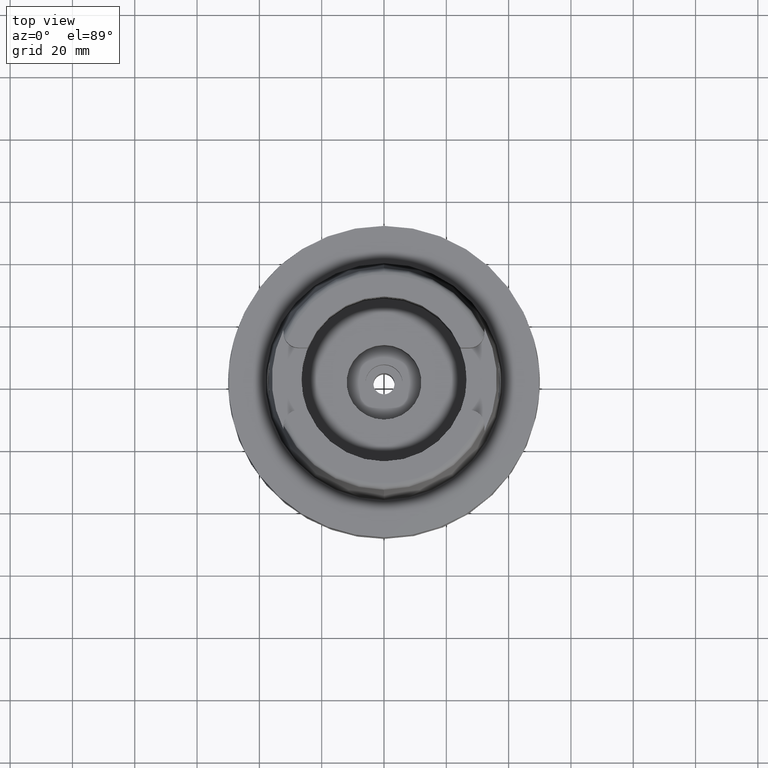
[diagram: clean part render]
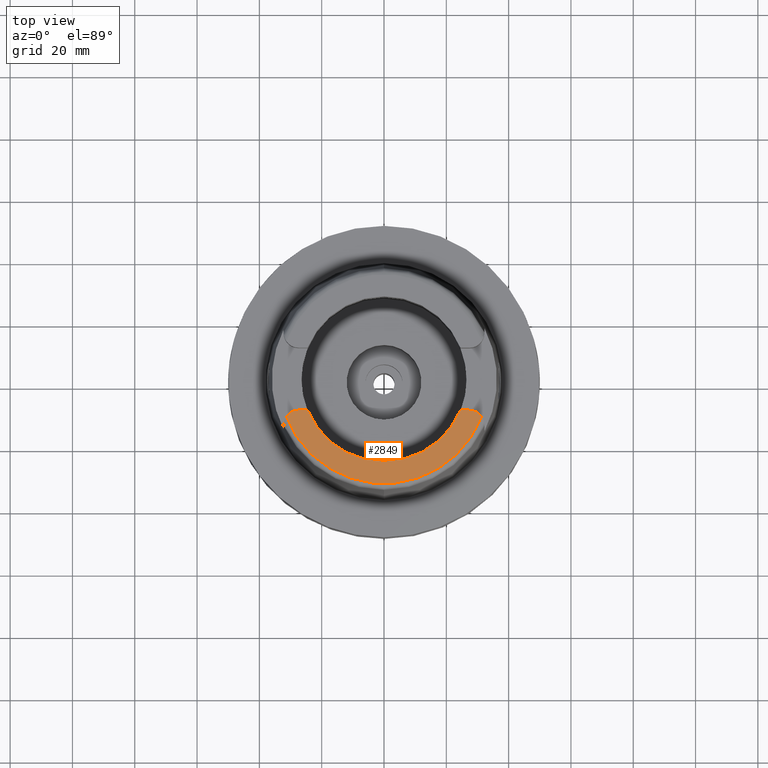
[diagram: same view with one face highlighted and labeled with its STEP entity id]
A machine part, top view. The second image highlights one B-rep face of the part: STEP entity #2849.
In plain terms, the highlighted planar face has unit normal (0, 0, 1).
Its self-contained STEP definition (entity closure, byte-faithful):
#160=DIRECTION('',(-1.E0,1.442003377037E-13,0.E0));
#161=VECTOR('',#160,2.833294842218E0);
#162=CARTESIAN_POINT('',(-2.453670515778E1,-1.001E1,5.E1));
#163=LINE('',#162,#161);
#167=CARTESIAN_POINT('',(-2.737E1,-1.489E1,5.E1));
#168=DIRECTION('',(0.E0,0.E0,-1.E0));
#169=DIRECTION('',(-8.163632566569E-1,5.775387720150E-1,0.E0));
#170=AXIS2_PLACEMENT_3D('',#167,#168,#169);
#175=CARTESIAN_POINT('',(0.E0,0.E0,5.E1));
#176=DIRECTION('',(0.E0,0.E0,1.E0));
#177=DIRECTION('',(-9.259134021805E-1,-3.777358490566E-1,0.E0));
#178=AXIS2_PLACEMENT_3D('',#175,#176,#177);
#183=CARTESIAN_POINT('',(0.E0,0.E0,5.E1));
#184=DIRECTION('',(0.E0,0.E0,1.E0));
#185=DIRECTION('',(0.E0,-1.E0,0.E0));
#186=AXIS2_PLACEMENT_3D('',#183,#184,#185);
#191=CARTESIAN_POINT('',(2.737E1,-1.489E1,5.E1));
#192=DIRECTION('',(0.E0,0.E0,-1.E0));
#193=DIRECTION('',(0.E0,1.E0,0.E0));
#194=AXIS2_PLACEMENT_3D('',#191,#192,#193);
#199=CARTESIAN_POINT('',(0.E0,0.E0,5.E1));
#200=DIRECTION('',(0.E0,0.E0,-1.E0));
#201=DIRECTION('',(9.332215253018E-1,-3.593015233942E-1,0.E0));
#202=AXIS2_PLACEMENT_3D('',#199,#200,#201);
#500=DIRECTION('',(-1.E0,-1.454542536838E-13,0.E0));
#501=VECTOR('',#500,2.833294842218E0);
#502=CARTESIAN_POINT('',(2.737E1,-1.001E1,5.E1));
#503=LINE('',#502,#501);
#2386=CARTESIAN_POINT('',(-3.135385269249E1,-1.207161079257E1,5.E1));
#2387=CARTESIAN_POINT('',(-2.737E1,-1.001E1,5.E1));
#2388=VERTEX_POINT('',#2386);
#2389=VERTEX_POINT('',#2387);
#2390=CARTESIAN_POINT('',(-2.453670515778E1,-1.001E1,5.E1));
#2391=VERTEX_POINT('',#2390);
#2392=CARTESIAN_POINT('',(0.E0,-2.65E1,5.E1));
#2393=VERTEX_POINT('',#2392);
#2394=CARTESIAN_POINT('',(2.453670515778E1,-1.001E1,5.E1));
#2395=VERTEX_POINT('',#2394);
#2396=CARTESIAN_POINT('',(2.737E1,-1.001E1,5.E1));
#2397=VERTEX_POINT('',#2396);
#2398=CARTESIAN_POINT('',(3.135385269249E1,-1.207161079257E1,5.E1));
#2399=VERTEX_POINT('',#2398);
#2830=CARTESIAN_POINT('',(0.E0,0.E0,5.E1));
#2831=DIRECTION('',(0.E0,0.E0,1.E0));
#2832=DIRECTION('',(0.E0,1.E0,0.E0));
#2833=AXIS2_PLACEMENT_3D('',#2830,#2831,#2832);
#2834=PLANE('',#2833);
#2836=ORIENTED_EDGE('',*,*,#2835,.T.);
#2837=ORIENTED_EDGE('',*,*,#2821,.F.);
#2838=ORIENTED_EDGE('',*,*,#2788,.T.);
#2840=ORIENTED_EDGE('',*,*,#2839,.T.);
#2842=ORIENTED_EDGE('',*,*,#2841,.F.);
#2844=ORIENTED_EDGE('',*,*,#2843,.T.);
#2846=ORIENTED_EDGE('',*,*,#2845,.T.);
#2847=EDGE_LOOP('',(#2836,#2837,#2838,#2840,#2842,#2844,#2846));
#2848=FACE_OUTER_BOUND('',#2847,.F.);
#171=CIRCLE('',#170,4.88E0);
#179=CIRCLE('',#178,2.65E1);
#187=CIRCLE('',#186,2.65E1);
#195=CIRCLE('',#194,4.88E0);
#203=CIRCLE('',#202,3.359743838136E1);
#2788=EDGE_CURVE('',#2391,#2393,#179,.T.);
#2821=EDGE_CURVE('',#2391,#2389,#163,.T.);
#2835=EDGE_CURVE('',#2388,#2389,#171,.T.);
#2839=EDGE_CURVE('',#2393,#2395,#187,.T.);
#2841=EDGE_CURVE('',#2397,#2395,#503,.T.);
#2843=EDGE_CURVE('',#2397,#2399,#195,.T.);
#2845=EDGE_CURVE('',#2399,#2388,#203,.T.);
#2849=ADVANCED_FACE('',(#2848),#2834,.T.);